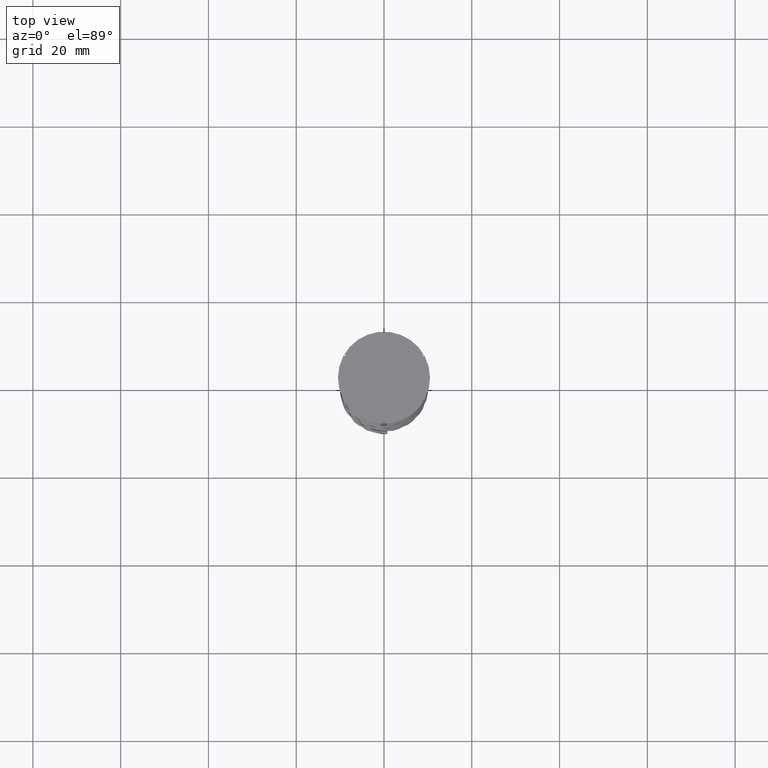
[diagram: clean part render]
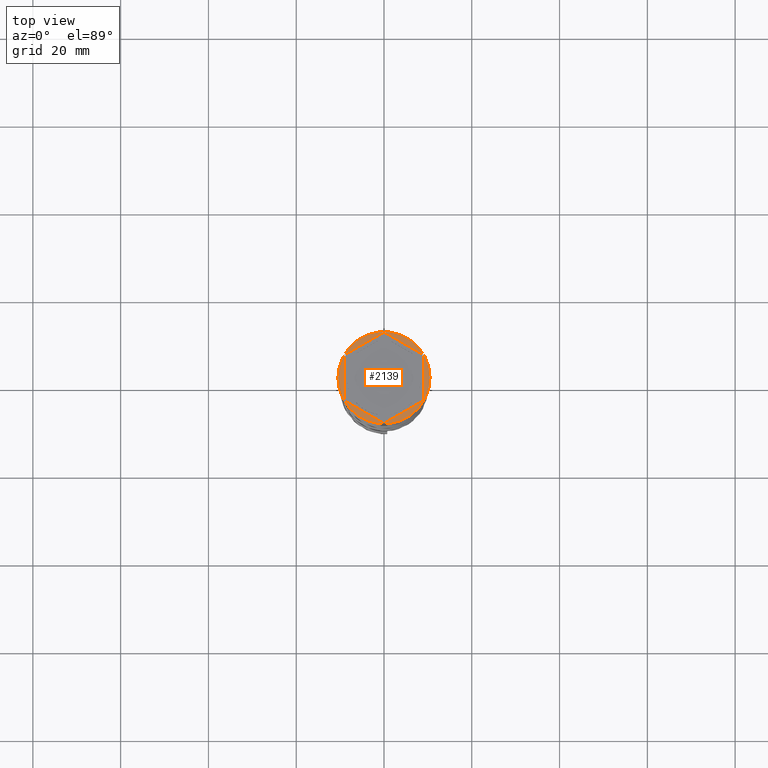
[diagram: same view with one face highlighted and labeled with its STEP entity id]
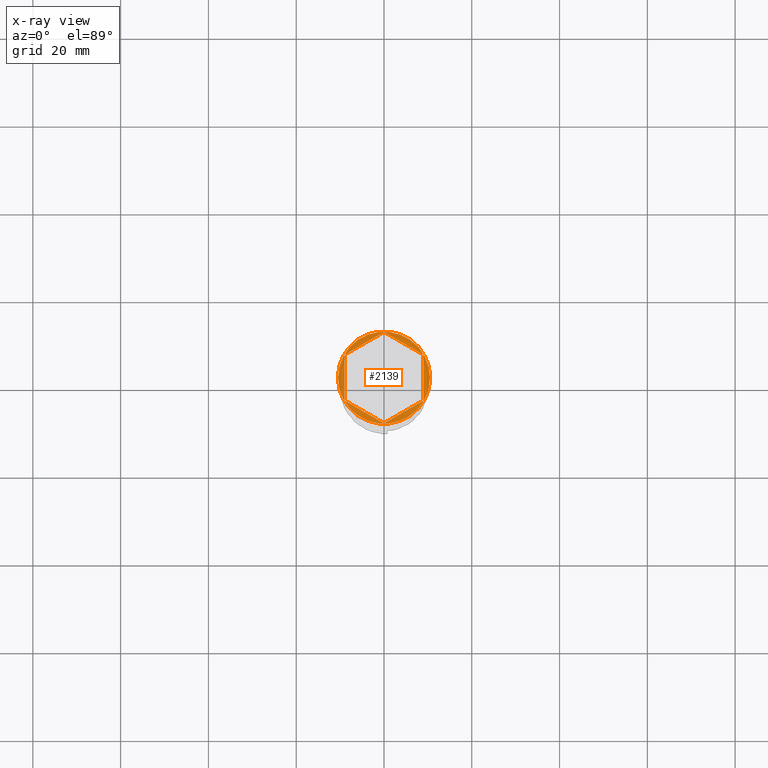
[diagram: x-ray of the same camera — body ghosted, the highlighted face saturated]
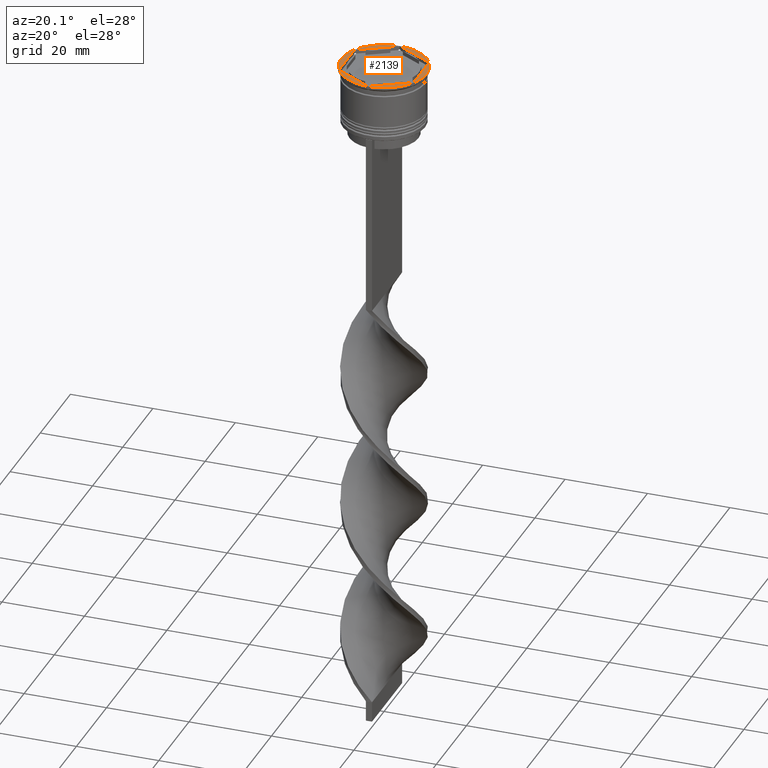
[diagram: same view with one face highlighted and labeled with its STEP entity id]
A machine part, top view. The second image highlights one B-rep face of the part: STEP entity #2139.
The next image is the same camera in x-ray: the body ghosted, the highlighted face saturated — about 0% of this face is hidden behind the body in this view.
A second angle (auxiliary view) of the same face is appended — the face is thin or edge-on in the first view.
In plain terms, the highlighted planar face has unit normal (0, -0, 1).
Its self-contained STEP definition (entity closure, byte-faithful):
#165 = AXIS2_PLACEMENT_3D ( 'NONE', #1281, #2508, #3706 ) ;
#236 = CARTESIAN_POINT ( 'NONE',  ( 0.000000000000000000, 0.000000000000000000, 0.000000000000000000 ) ) ;
#303 = DIRECTION ( 'NONE',  ( -0.8660254037844385966, 0.5000000000000000000, 0.000000000000000000 ) ) ;
#325 = CARTESIAN_POINT ( 'NONE',  ( 9.000000000000001776, 5.196152422706632912, 0.000000000000000000 ) ) ;
#366 = FACE_BOUND ( 'NONE', #497, .T. ) ;
#440 = EDGE_CURVE ( 'NONE', #3420, #2509, #862, .T. ) ;
#497 = EDGE_LOOP ( 'NONE', ( #622, #1702, #1196, #2854, #3836, #2197 ) ) ;
#532 = CIRCLE ( 'NONE', #1732, 10.50000000000000000 ) ;
#596 = LINE ( 'NONE', #1798, #3152 ) ;
#622 = ORIENTED_EDGE ( 'NONE', *, *, #1923, .F. ) ;
#730 = AXIS2_PLACEMENT_3D ( 'NONE', #3685, #1306, #3705 ) ;
#760 = VERTEX_POINT ( 'NONE', #2080 ) ;
#857 = EDGE_CURVE ( 'NONE', #1586, #1970, #2051, .T. ) ;
#862 = LINE ( 'NONE', #1561, #3576 ) ;
#956 = CARTESIAN_POINT ( 'NONE',  ( 0.000000000000000000, 10.39230484541326582, 0.000000000000000000 ) ) ;
#1080 = DIRECTION ( 'NONE',  ( 0.000000000000000000, -1.000000000000000000, 0.000000000000000000 ) ) ;
#1107 = VECTOR ( 'NONE', #3513, 1000.000000000000000 ) ;
#1196 = ORIENTED_EDGE ( 'NONE', *, *, #3795, .F. ) ;
#1204 = CARTESIAN_POINT ( 'NONE',  ( 10.50000000000000000, 0.000000000000000000, 0.000000000000000000 ) ) ;
#1281 = CARTESIAN_POINT ( 'NONE',  ( 0.000000000000000000, 0.000000000000000000, 0.000000000000000000 ) ) ;
#1306 = DIRECTION ( 'NONE',  ( -0.000000000000000000, -0.000000000000000000, 1.000000000000000000 ) ) ;
#1377 = LINE ( 'NONE', #2278, #2066 ) ;
#1495 = LINE ( 'NONE', #2163, #3246 ) ;
#1536 = DIRECTION ( 'NONE',  ( -0.8660254037844385966, -0.5000000000000001110, 0.000000000000000000 ) ) ;
#1561 = CARTESIAN_POINT ( 'NONE',  ( 0.000000000000000000, 10.39230484541326582, 0.000000000000000000 ) ) ;
#1576 = FACE_OUTER_BOUND ( 'NONE', #1774, .T. ) ;
#1586 = VERTEX_POINT ( 'NONE', #1920 ) ;
#1605 = EDGE_CURVE ( 'NONE', #3327, #2536, #2986, .T. ) ;
#1647 = EDGE_CURVE ( 'NONE', #1970, #1586, #532, .T. ) ;
#1702 = ORIENTED_EDGE ( 'NONE', *, *, #1605, .F. ) ;
#1732 = AXIS2_PLACEMENT_3D ( 'NONE', #236, #2312, #2335 ) ;
#1736 = CARTESIAN_POINT ( 'NONE',  ( 9.000000000000001776, -5.196152422706632024, 0.000000000000000000 ) ) ;
#1774 = EDGE_LOOP ( 'NONE', ( #2615, #2837 ) ) ;
#1798 = CARTESIAN_POINT ( 'NONE',  ( -9.000000000000001776, -5.196152422706632912, 0.000000000000000000 ) ) ;
#1920 = CARTESIAN_POINT ( 'NONE',  ( -10.50000000000000000, 1.285879139104720831E-15, 0.000000000000000000 ) ) ;
#1923 = EDGE_CURVE ( 'NONE', #2536, #3420, #2448, .T. ) ;
#1966 = VERTEX_POINT ( 'NONE', #2118 ) ;
#1970 = VERTEX_POINT ( 'NONE', #1204 ) ;
#2051 = CIRCLE ( 'NONE', #730, 10.50000000000000000 ) ;
#2066 = VECTOR ( 'NONE', #1080, 1000.000000000000000 ) ;
#2080 = CARTESIAN_POINT ( 'NONE',  ( -9.000000000000001776, -5.196152422706632912, 0.000000000000000000 ) ) ;
#2118 = CARTESIAN_POINT ( 'NONE',  ( 2.607697573705103160E-15, -10.39230484541326405, 0.000000000000000000 ) ) ;
#2139 = ADVANCED_FACE ( 'NONE', ( #366, #1576 ), #2802, .T. ) ;
#2163 = CARTESIAN_POINT ( 'NONE',  ( 2.607697573705103160E-15, -10.39230484541326405, 0.000000000000000000 ) ) ;
#2197 = ORIENTED_EDGE ( 'NONE', *, *, #440, .F. ) ;
#2278 = CARTESIAN_POINT ( 'NONE',  ( -9.000000000000001776, 5.196152422706632024, 0.000000000000000000 ) ) ;
#2312 = DIRECTION ( 'NONE',  ( -0.000000000000000000, -0.000000000000000000, 1.000000000000000000 ) ) ;
#2335 = DIRECTION ( 'NONE',  ( 1.000000000000000000, 0.000000000000000000, 0.000000000000000000 ) ) ;
#2448 = LINE ( 'NONE', #325, #3322 ) ;
#2508 = DIRECTION ( 'NONE',  ( 0.000000000000000000, -0.000000000000000000, 1.000000000000000000 ) ) ;
#2509 = VERTEX_POINT ( 'NONE', #3601 ) ;
#2536 = VERTEX_POINT ( 'NONE', #3311 ) ;
#2544 = EDGE_CURVE ( 'NONE', #760, #1966, #596, .T. ) ;
#2615 = ORIENTED_EDGE ( 'NONE', *, *, #1647, .T. ) ;
#2802 = PLANE ( 'NONE',  #165 ) ;
#2837 = ORIENTED_EDGE ( 'NONE', *, *, #857, .T. ) ;
#2854 = ORIENTED_EDGE ( 'NONE', *, *, #2544, .F. ) ;
#2986 = LINE ( 'NONE', #1736, #1107 ) ;
#3152 = VECTOR ( 'NONE', #3875, 1000.000000000000114 ) ;
#3246 = VECTOR ( 'NONE', #3688, 1000.000000000000000 ) ;
#3311 = CARTESIAN_POINT ( 'NONE',  ( 9.000000000000001776, 5.196152422706632912, 0.000000000000000000 ) ) ;
#3322 = VECTOR ( 'NONE', #303, 1000.000000000000227 ) ;
#3327 = VERTEX_POINT ( 'NONE', #3657 ) ;
#3420 = VERTEX_POINT ( 'NONE', #956 ) ;
#3513 = DIRECTION ( 'NONE',  ( 0.000000000000000000, 1.000000000000000000, 0.000000000000000000 ) ) ;
#3524 = EDGE_CURVE ( 'NONE', #2509, #760, #1377, .T. ) ;
#3576 = VECTOR ( 'NONE', #1536, 1000.000000000000000 ) ;
#3601 = CARTESIAN_POINT ( 'NONE',  ( -9.000000000000001776, 5.196152422706632024, 0.000000000000000000 ) ) ;
#3657 = CARTESIAN_POINT ( 'NONE',  ( 9.000000000000001776, -5.196152422706632024, 0.000000000000000000 ) ) ;
#3685 = CARTESIAN_POINT ( 'NONE',  ( 0.000000000000000000, 0.000000000000000000, 0.000000000000000000 ) ) ;
#3688 = DIRECTION ( 'NONE',  ( 0.8660254037844385966, 0.5000000000000001110, 0.000000000000000000 ) ) ;
#3705 = DIRECTION ( 'NONE',  ( 1.000000000000000000, 0.000000000000000000, 0.000000000000000000 ) ) ;
#3706 = DIRECTION ( 'NONE',  ( 1.000000000000000000, 0.000000000000000000, 0.000000000000000000 ) ) ;
#3795 = EDGE_CURVE ( 'NONE', #1966, #3327, #1495, .T. ) ;
#3836 = ORIENTED_EDGE ( 'NONE', *, *, #3524, .F. ) ;
#3875 = DIRECTION ( 'NONE',  ( 0.8660254037844387076, -0.4999999999999997224, 0.000000000000000000 ) ) ;